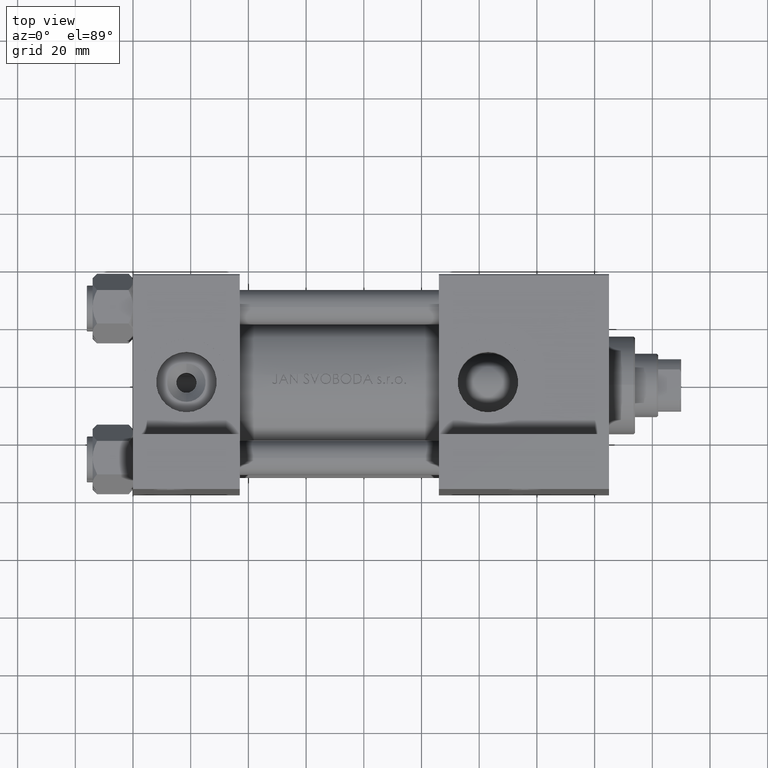
[diagram: clean part render]
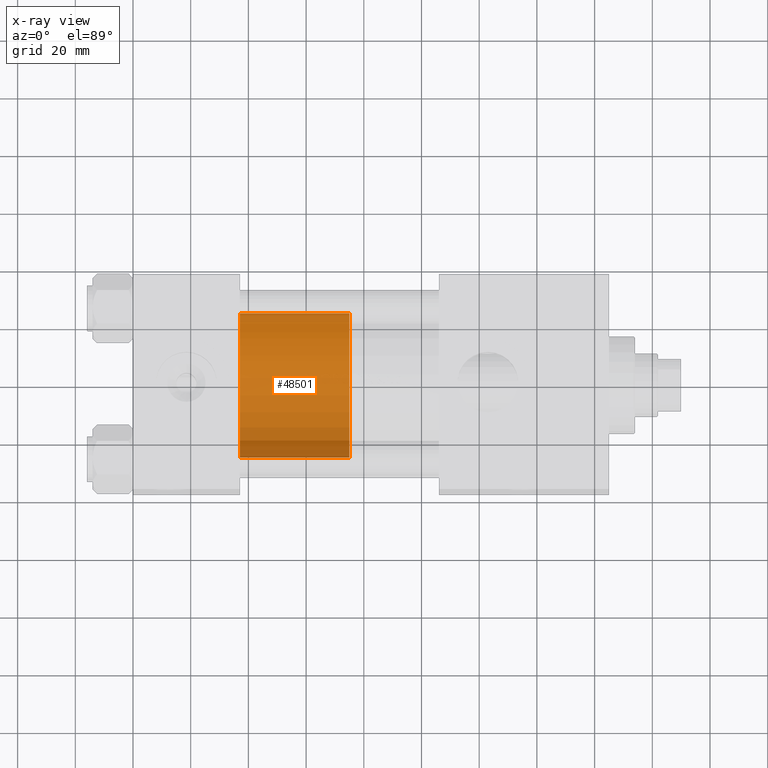
[diagram: x-ray — body ghosted, one internal face saturated and labeled with its STEP entity id]
A machine part, top view, then the same camera in x-ray: the body is ghosted and one INTERNAL B-rep face — a face not visible from any outside direction — is saturated and labeled: STEP entity #48501.
In plain terms, the highlighted cylindrical surface (partial cylindrical patch) has radius 25 mm, axis along (-1, 0, 0).
Its self-contained STEP definition (entity closure, byte-faithful):
#565 = CARTESIAN_POINT ( 'NONE',  ( 0.000000000000000000, 0.000000000000000000, 0.000000000000000000 ) ) ;
#3173 = LINE ( 'NONE', #31025, #27192 ) ;
#3497 = VECTOR ( 'NONE', #8602, 1000.000000000000000 ) ;
#4386 = CARTESIAN_POINT ( 'NONE',  ( 25.00000000000000000, 3.061616997868383043E-15, 38.00000000000000000 ) ) ;
#8013 = DIRECTION ( 'NONE',  ( 0.000000000000000000, 0.000000000000000000, 1.000000000000000000 ) ) ;
#8602 = DIRECTION ( 'NONE',  ( -0.000000000000000000, -0.000000000000000000, -1.000000000000000000 ) ) ;
#8863 = ORIENTED_EDGE ( 'NONE', *, *, #18135, .F. ) ;
#9208 = CARTESIAN_POINT ( 'NONE',  ( -25.00000000000000000, 0.000000000000000000, 0.000000000000000000 ) ) ;
#12223 = FACE_OUTER_BOUND ( 'NONE', #20813, .T. ) ;
#12302 = CARTESIAN_POINT ( 'NONE',  ( 0.000000000000000000, 0.000000000000000000, 38.00000000000000000 ) ) ;
#12790 = CARTESIAN_POINT ( 'NONE',  ( 25.00000000000000000, 3.061616997868383043E-15, 0.000000000000000000 ) ) ;
#16940 = DIRECTION ( 'NONE',  ( -1.000000000000000000, 0.000000000000000000, 0.000000000000000000 ) ) ;
#18135 = EDGE_CURVE ( 'NONE', #29551, #41018, #39691, .T. ) ;
#20077 = AXIS2_PLACEMENT_3D ( 'NONE', #565, #8013, #23215 ) ;
#20700 = CARTESIAN_POINT ( 'NONE',  ( 0.000000000000000000, 0.000000000000000000, 38.00000000000000000 ) ) ;
#20813 = EDGE_LOOP ( 'NONE', ( #8863, #45234, #28043, #26173 ) ) ;
#23215 = DIRECTION ( 'NONE',  ( 1.000000000000000000, 0.000000000000000000, 0.000000000000000000 ) ) ;
#25350 = VERTEX_POINT ( 'NONE', #9208 ) ;
#26173 = ORIENTED_EDGE ( 'NONE', *, *, #29681, .F. ) ;
#27047 = DIRECTION ( 'NONE',  ( -0.000000000000000000, -0.000000000000000000, -1.000000000000000000 ) ) ;
#27192 = VECTOR ( 'NONE', #27047, 1000.000000000000000 ) ;
#27502 = DIRECTION ( 'NONE',  ( 0.000000000000000000, 0.000000000000000000, 1.000000000000000000 ) ) ;
#28043 = ORIENTED_EDGE ( 'NONE', *, *, #33199, .T. ) ;
#29322 = AXIS2_PLACEMENT_3D ( 'NONE', #12302, #27502, #35221 ) ;
#29551 = VERTEX_POINT ( 'NONE', #37041 ) ;
#29681 = EDGE_CURVE ( 'NONE', #41018, #25350, #3173, .T. ) ;
#31025 = CARTESIAN_POINT ( 'NONE',  ( -25.00000000000000000, 0.000000000000000000, 38.00000000000000000 ) ) ;
#31891 = CYLINDRICAL_SURFACE ( 'NONE', #41113, 25.00000000000000000 ) ;
#32127 = DIRECTION ( 'NONE',  ( -0.000000000000000000, -0.000000000000000000, -1.000000000000000000 ) ) ;
#32735 = CARTESIAN_POINT ( 'NONE',  ( -25.00000000000000000, 0.000000000000000000, 38.00000000000000000 ) ) ;
#33199 = EDGE_CURVE ( 'NONE', #40279, #25350, #44713, .T. ) ;
#35221 = DIRECTION ( 'NONE',  ( 1.000000000000000000, 0.000000000000000000, 0.000000000000000000 ) ) ;
#37041 = CARTESIAN_POINT ( 'NONE',  ( 25.00000000000000000, 3.061616997868383043E-15, 38.00000000000000000 ) ) ;
#39691 = CIRCLE ( 'NONE', #29322, 25.00000000000000000 ) ;
#40279 = VERTEX_POINT ( 'NONE', #12790 ) ;
#40973 = EDGE_CURVE ( 'NONE', #29551, #40279, #46224, .T. ) ;
#41018 = VERTEX_POINT ( 'NONE', #32735 ) ;
#41113 = AXIS2_PLACEMENT_3D ( 'NONE', #20700, #32127, #16940 ) ;
#44713 = CIRCLE ( 'NONE', #20077, 25.00000000000000000 ) ;
#45234 = ORIENTED_EDGE ( 'NONE', *, *, #40973, .T. ) ;
#46224 = LINE ( 'NONE', #4386, #3497 ) ;
#48501 = ADVANCED_FACE ( 'NONE', ( #12223 ), #31891, .T. ) ;